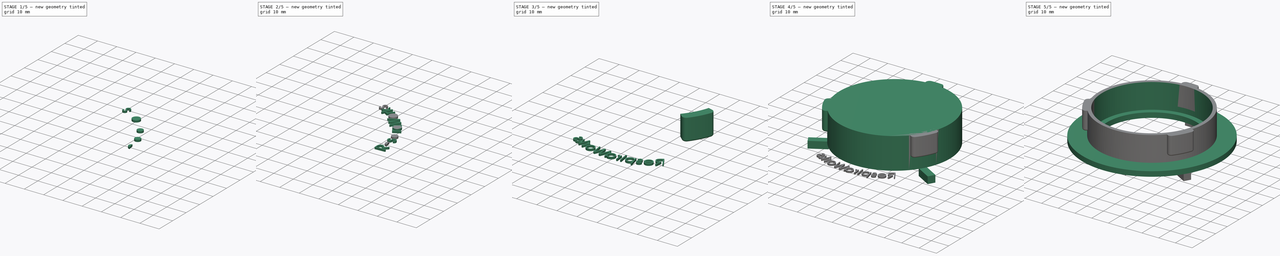
[diagram: build sequence overview — one tinted view per stage of 5, left to right]
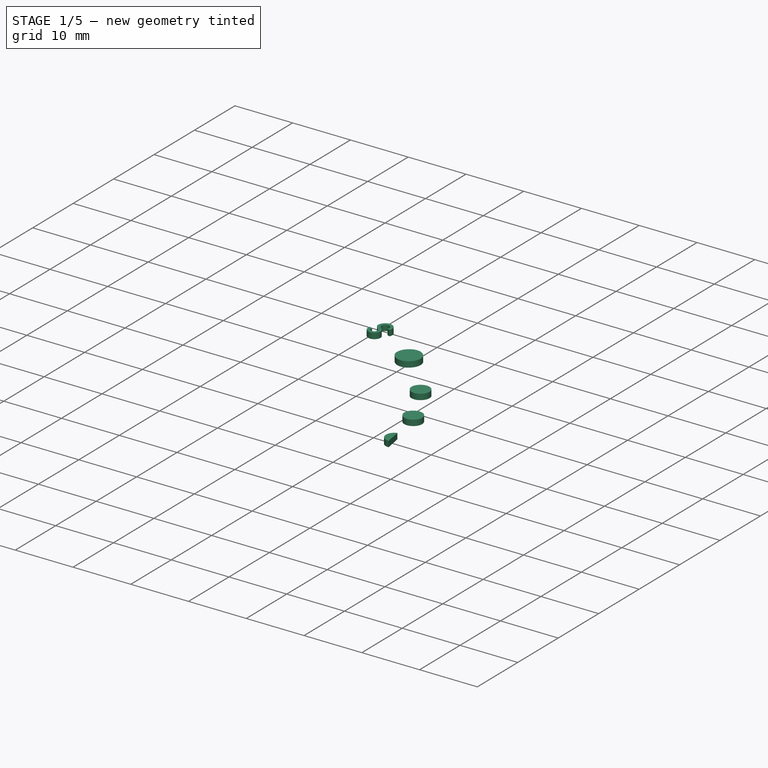
[diagram: stage 1 of 5 — iso view after this stage's code; geometry added in this stage tinted green]
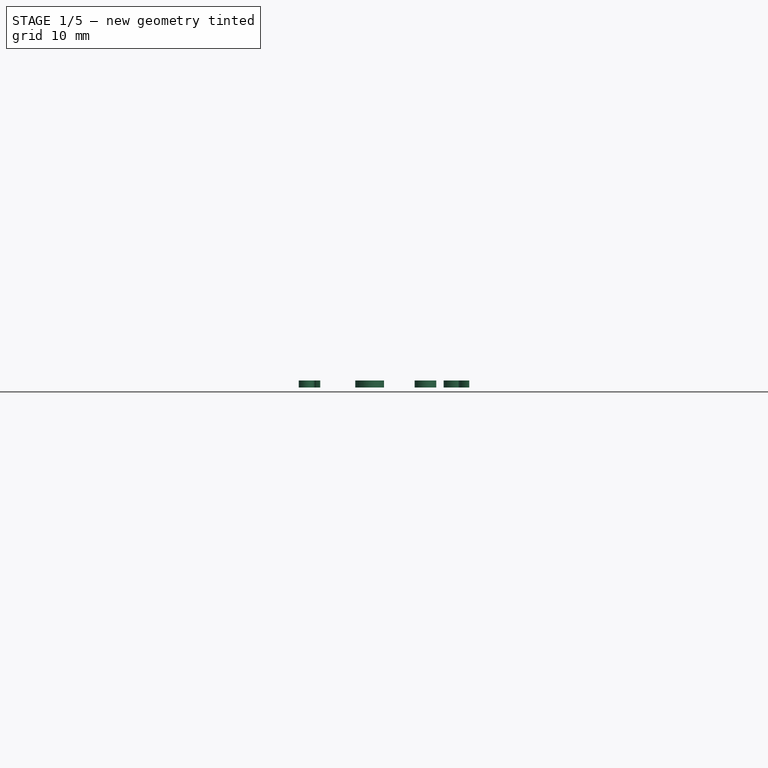
[diagram: stage 1 of 5 — front view after this stage's code; geometry added in this stage tinted green]
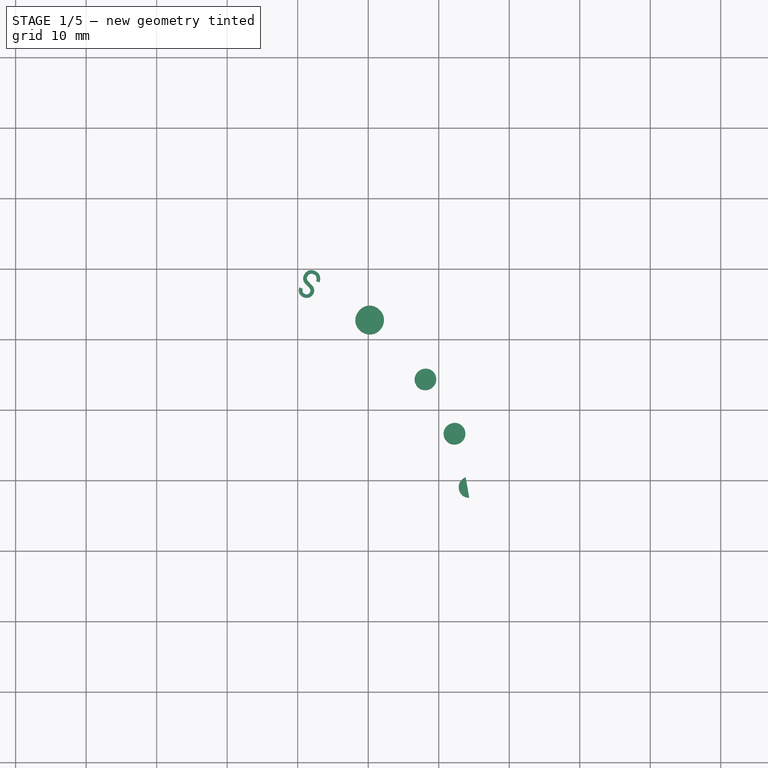
[diagram: stage 1 of 5 — top view after this stage's code; geometry added in this stage tinted green]
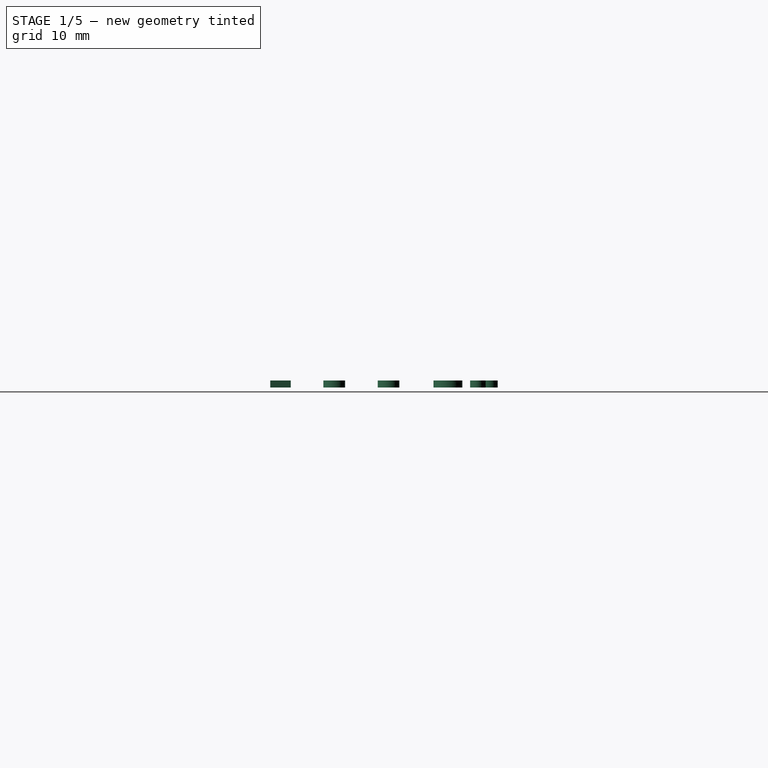
[diagram: stage 1 of 5 — right view after this stage's code; geometry added in this stage tinted green]
FCSTD DOCUMENT  (FreeCAD 0.18R4 (GitTag))
Label: PAPR-6700-FullFaceMaskPlate
License: All rights reserved
LicenseURL: http://en.wikipedia.org/wiki/All_rights_reserved
objects: Part::Feature×17, Part::Extrusion×17, Part::Cylinder×5, Part::MultiFuse×4, Sketcher::SketchObject×3, Part::Revolution×3, Part::Fillet×3, Part::Cut×2, Part::Box×1, Part::FeaturePython×1
note: 56 computed .brp shape members not serialized (recipe doc carries the construction recipe); baked Part::Feature solids carry a one-line shape summary decoded from their .brp

FEATURE [Part::Feature] path1074001
  shape: bbox 3.229 x 3.209 x 2e-07 mm, 0 faces, 0 solids (baked)
FEATURE [Part::Feature] path1082
  shape: bbox 4.44 x 6.043 x 2e-07 mm, 0 faces, 0 solids (baked)
FEATURE [Part::Extrusion] Extrude015
  Base = -> path1074001
  Dir = (0,0,-1)
  DirMode = 2
  FaceMakerClass = Part::FaceMakerBullseye
  LengthFwd = -1
  LengthRev = 0
  Solid = true
  Symmetric = false
FEATURE [Part::Extrusion] Extrude009
  Base = -> path1078
  Dir = (0,0,1)
  DirMode = 2
  FaceMakerClass = Part::FaceMakerBullseye
  LengthFwd = 1
  LengthRev = 0
  Solid = true
  Symmetric = false
FEATURE [Part::Extrusion] Extrude014
  Base = -> path1068001
  Dir = (0,0,-1)
  DirMode = 2
  FaceMakerClass = Part::FaceMakerBullseye
  LengthFwd = -1
  LengthRev = 0
  Solid = true
  Symmetric = false
FEATURE [Part::Extrusion] Extrude012
  Base = -> path1084
  Dir = (0,0,1)
  DirMode = 2
  FaceMakerClass = Part::FaceMakerBullseye
  LengthFwd = 1
  LengthRev = 0
  Solid = true
  Symmetric = false
FEATURE [Part::Extrusion] Extrude016
  Base = -> path1078001
  Dir = (0,0,-1)
  DirMode = 2
  FaceMakerClass = Part::FaceMakerBullseye
  LengthFwd = -1
  LengthRev = 0
  Solid = true
  Symmetric = false
FEATURE [Part::Feature] path1064001
  shape: bbox 1.557 x 2.913 x 2e-07 mm, 0 faces, 0 solids (baked)
FEATURE [Part::Extrusion] Extrude013
  Base = -> path1064001
  Dir = (0,0,-1)
  DirMode = 2
  FaceMakerClass = Part::FaceMakerBullseye
  LengthFwd = -1
  LengthRev = 0
  Solid = true
  Symmetric = false
FEATURE [Part::MultiFuse] Fusion003  label="nRespiraWorksCircularText"
  Shapes = -> [Extrude013,Extrude015,Extrude014,Extrude016]
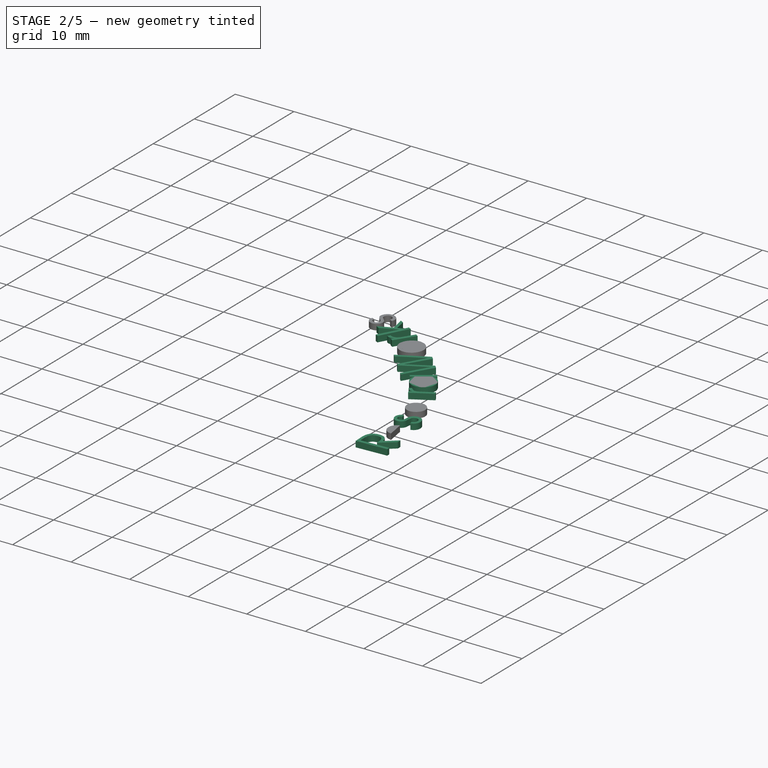
[diagram: stage 2 of 5 — iso view after this stage's code; geometry added in this stage tinted green]
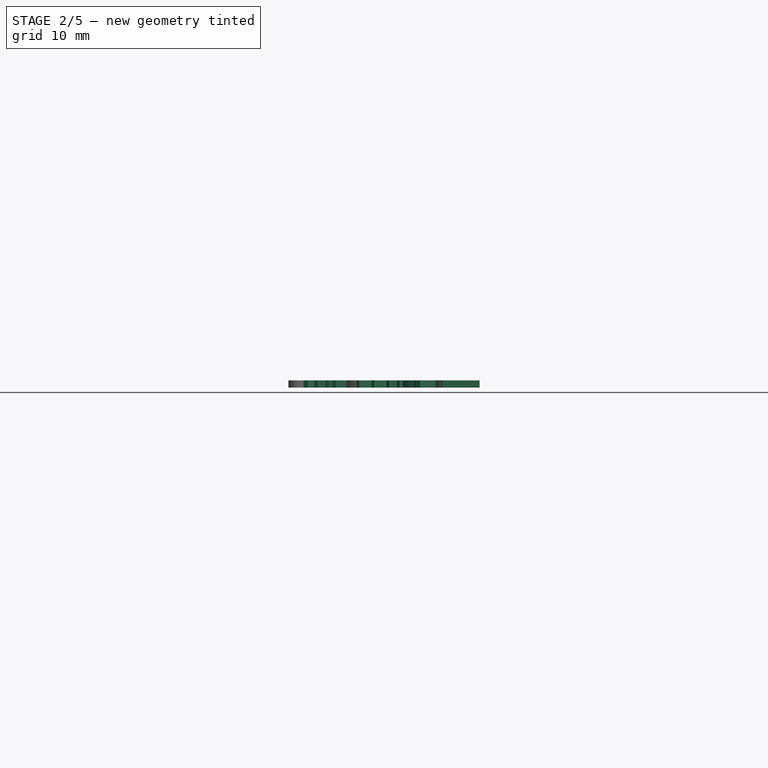
[diagram: stage 2 of 5 — front view after this stage's code; geometry added in this stage tinted green]
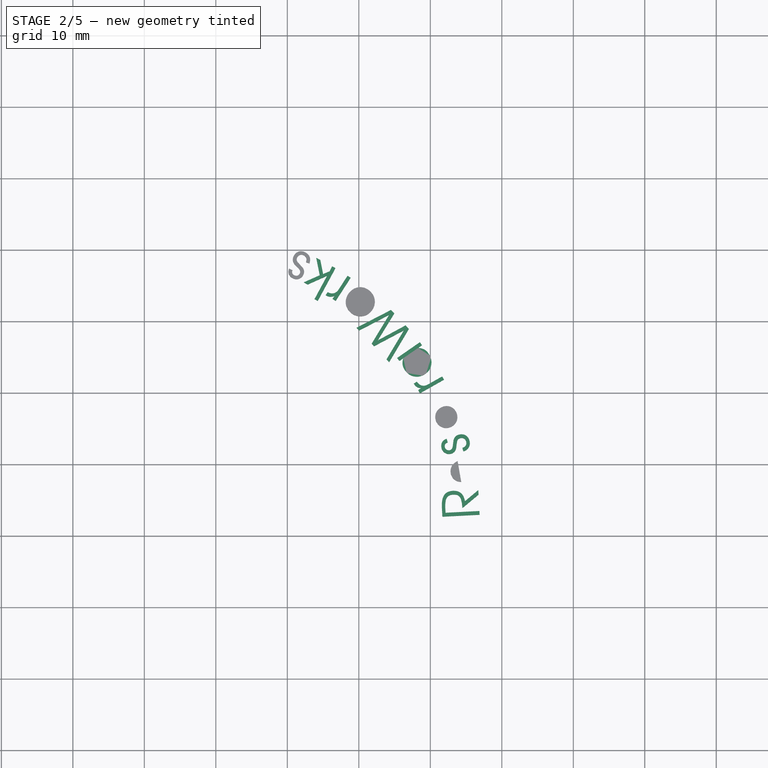
[diagram: stage 2 of 5 — top view after this stage's code; geometry added in this stage tinted green]
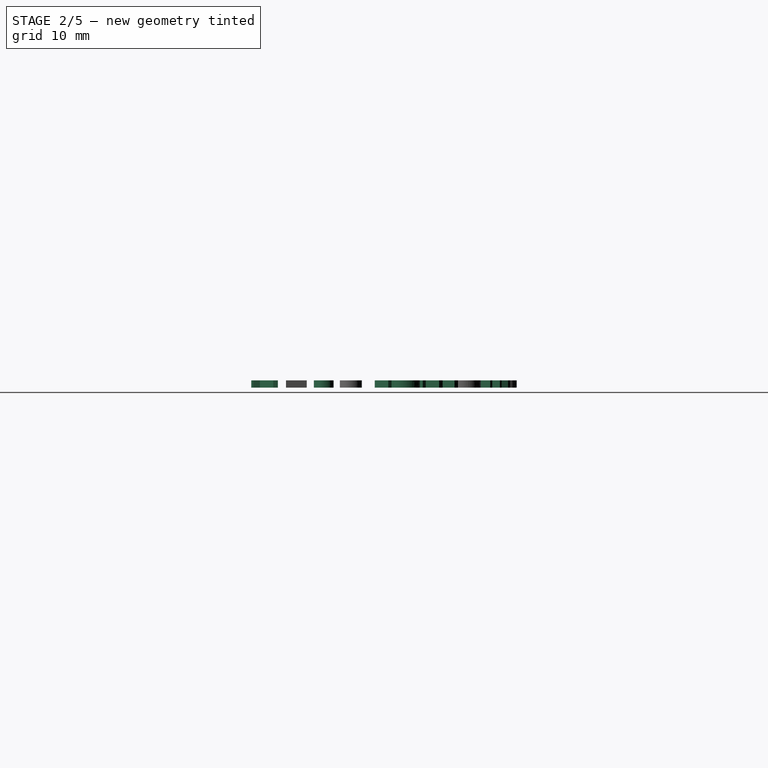
[diagram: stage 2 of 5 — right view after this stage's code; geometry added in this stage tinted green]
FEATURE [Part::Feature] path1066
  shape: bbox 4.123 x 2.886 x 2e-07 mm, 0 faces, 0 solids (baked)
FEATURE [Part::Extrusion] Extrude002
  Base = -> path1066
  Dir = (0,0,1)
  DirMode = 2
  FaceMakerClass = Part::FaceMakerBullseye
  LengthFwd = 1
  LengthRev = 0
  Solid = true
  Symmetric = false
FEATURE [Part::Feature] path1072
  shape: bbox 4.235 x 2.351 x 2e-07 mm, 0 faces, 0 solids (baked)
FEATURE [Part::Extrusion] Extrude006
  Base = -> path1072
  Dir = (0,0,1)
  DirMode = 2
  FaceMakerClass = Part::FaceMakerBullseye
  LengthFwd = 1
  LengthRev = 0
  Solid = true
  Symmetric = false
FEATURE [Part::Feature] path1074
  shape: bbox 4.889 x 4.925 x 2e-07 mm, 0 faces, 0 solids (baked)
FEATURE [Part::Extrusion] Extrude007
  Base = -> path1074
  Dir = (0,0,1)
  DirMode = 2
  FaceMakerClass = Part::FaceMakerBullseye
  LengthFwd = 1
  LengthRev = 0
  Solid = true
  Symmetric = false
FEATURE [Part::Feature] path1068001
  shape: bbox 3.237 x 3.218 x 2e-07 mm, 0 faces, 0 solids (baked)
FEATURE [Part::Feature] path1078001
  shape: bbox 3.195 x 3.225 x 2e-07 mm, 0 faces, 0 solids (baked)
FEATURE [Part::Feature] path1076
  shape: bbox 7.322 x 7.314 x 2e-07 mm, 0 faces, 0 solids (baked)
FEATURE [Part::Extrusion] Extrude008
  Base = -> path1076
  Dir = (0,0,1)
  DirMode = 2
  FaceMakerClass = Part::FaceMakerBullseye
  LengthFwd = 1
  LengthRev = 0
  Solid = true
  Symmetric = false
FEATURE [Part::Extrusion] Extrude011
  Base = -> path1082
  Dir = (0,0,1)
  DirMode = 2
  FaceMakerClass = Part::FaceMakerBullseye
  LengthFwd = 1
  LengthRev = 0
  Solid = true
  Symmetric = false
FEATURE [Part::Extrusion] Extrude010
  Base = -> path1080
  Dir = (0,0,1)
  DirMode = 2
  FaceMakerClass = Part::FaceMakerBullseye
  LengthFwd = 1
  LengthRev = 0
  Solid = true
  Symmetric = false
FEATURE [Part::Feature] path1062
  shape: bbox 5.36 x 3.724 x 2e-07 mm, 0 faces, 0 solids (baked)
FEATURE [Part::Extrusion] Extrude
  Base = -> path1062
  Dir = (0,0,1)
  DirMode = 2
  FaceMakerClass = Part::FaceMakerBullseye
  LengthFwd = 1
  LengthRev = 0
  Solid = true
  Symmetric = false
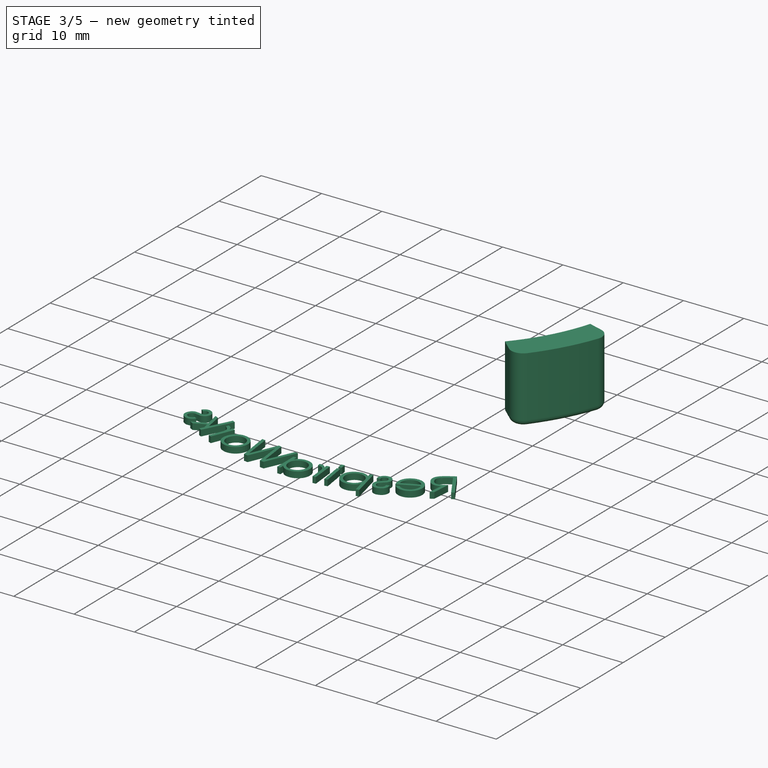
[diagram: stage 3 of 5 — iso view after this stage's code; geometry added in this stage tinted green]
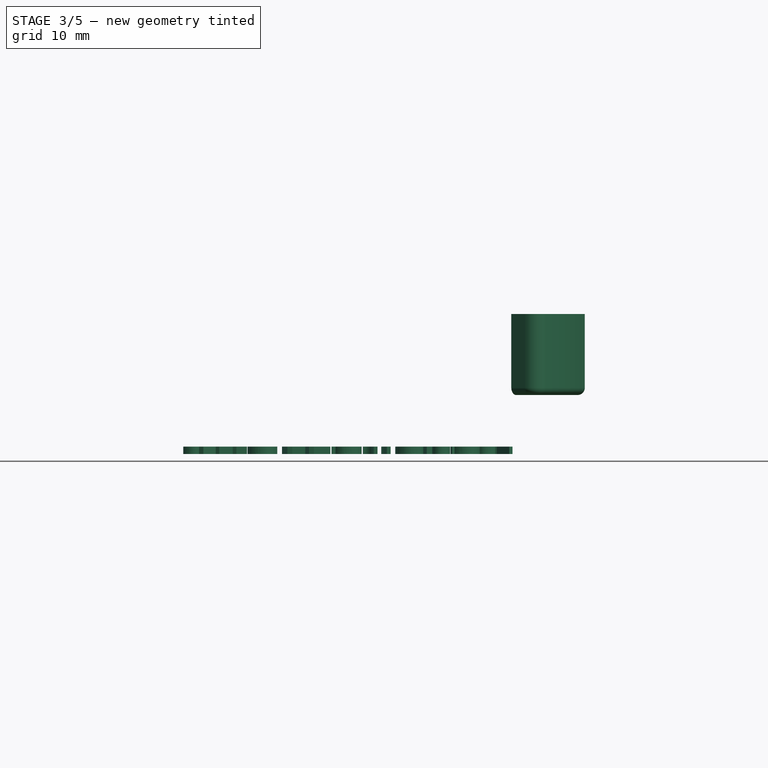
[diagram: stage 3 of 5 — front view after this stage's code; geometry added in this stage tinted green]
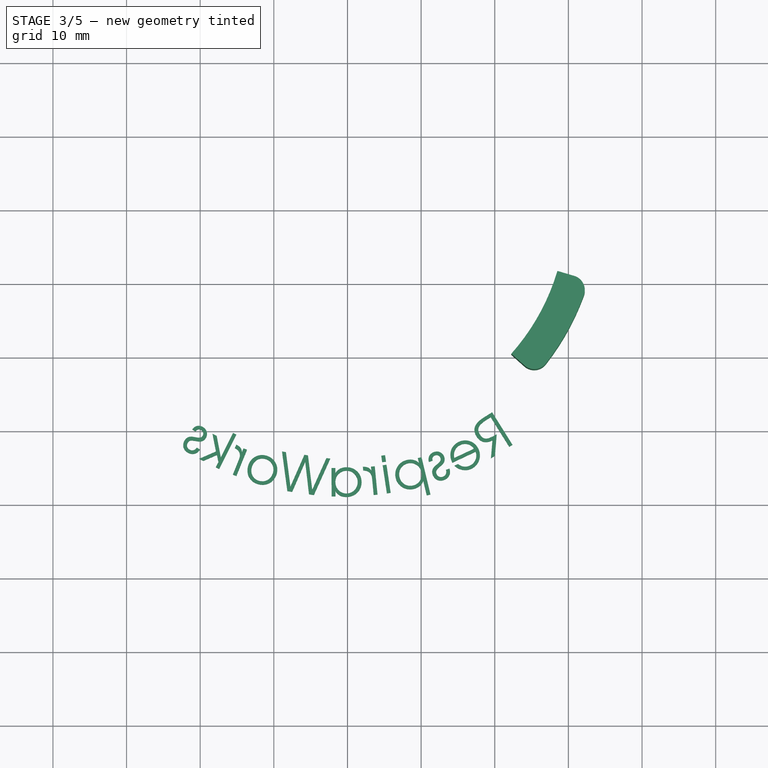
[diagram: stage 3 of 5 — top view after this stage's code; geometry added in this stage tinted green]
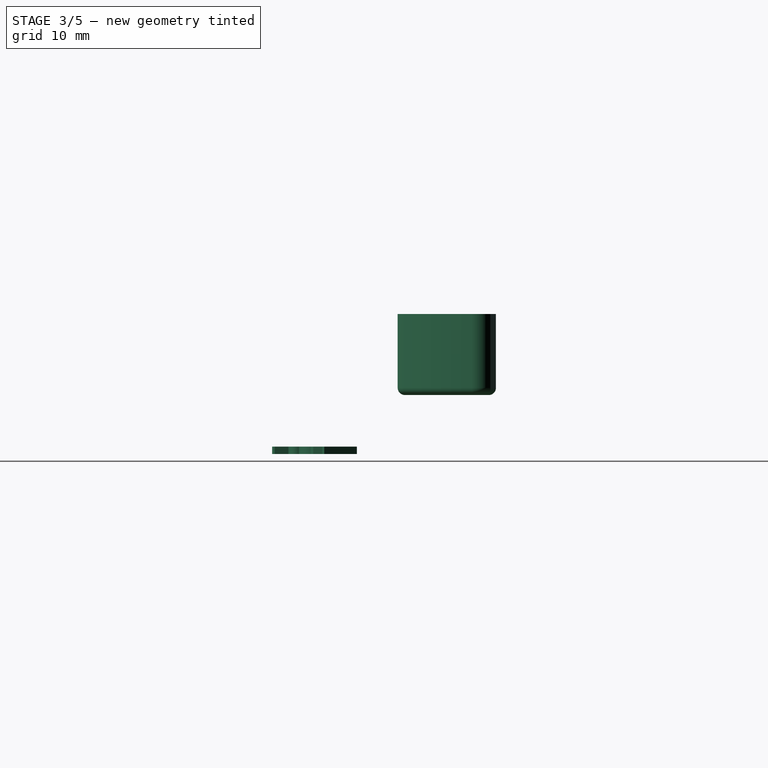
[diagram: stage 3 of 5 — right view after this stage's code; geometry added in this stage tinted green]
FEATURE [Part::Revolution] Revolve001  label="pFullFaceMaskPlate-LongTooth1"
  Angle = 25
  Axis = (0,0,1)
  Base = (0,0,0)
  FaceMakerClass = Part::FaceMakerBullseye
  Placement = pos=(0,0,0) rot=(0,0,1;3.98633rad)
  Solid = true
  Source = -> Sketch
  Symmetric = false
FEATURE [Part::Fillet] Fillet002  label="pFullFaceMaskPlate-LongToothSmooth1"
  Base = -> Revolve001
  Edges = 5 edges: [Edge5 r=1,Edge6 r=2,Edge7 r=2,Edge9 r=1,Edge10 r=1]
FEATURE [Part::Feature] path1080
  shape: bbox 3.503 x 3.524 x 2e-07 mm, 0 faces, 0 solids (baked)
FEATURE [Part::Feature] path1068
  shape: bbox 5.928 x 4.739 x 2e-07 mm, 0 faces, 0 solids (baked)
FEATURE [Part::Extrusion] Extrude003
  Base = -> path1068
  Dir = (0,0,1)
  DirMode = 2
  FaceMakerClass = Part::FaceMakerBullseye
  LengthFwd = 1
  LengthRev = 0
  Solid = true
  Symmetric = false
FEATURE [Part::Feature] path1084
  shape: bbox 3.158 x 4.031 x 2e-07 mm, 0 faces, 0 solids (baked)
FEATURE [Part::Feature] path1078
  shape: bbox 4.267 x 4.276 x 2e-07 mm, 0 faces, 0 solids (baked)
FEATURE [Part::Feature] path1070
  shape: bbox 3.686 x 2.19 x 2e-07 mm, 0 faces, 0 solids (baked)
FEATURE [Part::Extrusion] Extrude004
  Base = -> path1070
  Dir = (0,0,1)
  DirMode = 2
  FaceMakerClass = Part::FaceMakerBullseye
  LengthFwd = 1
  LengthRev = 0
  Solid = true
  Symmetric = false
FEATURE [Part::Feature] path1070001
  shape: bbox 1.029 x 0.8641 x 2e-07 mm, 0 faces, 0 solids (baked)
FEATURE [Part::Extrusion] Extrude005
  Base = -> path1070001
  Dir = (0,0,1)
  DirMode = 2
  FaceMakerClass = Part::FaceMakerBullseye
  LengthFwd = 1
  LengthRev = 0
  Solid = true
  Symmetric = false
FEATURE [Part::Feature] path1064
  shape: bbox 4.256 x 4.117 x 2e-07 mm, 0 faces, 0 solids (baked)
FEATURE [Part::Extrusion] Extrude001
  Base = -> path1064
  Dir = (0,0,1)
  DirMode = 2
  FaceMakerClass = Part::FaceMakerBullseye
  LengthFwd = 1
  LengthRev = 0
  Solid = true
  Symmetric = false
FEATURE [Part::MultiFuse] Fusion002  label="pRespiraWorksCircularText"
  Shapes = -> [Extrude012,Extrude001,Extrude003,Extrude004,Extrude005,Extrude006,Extrude007,Extrude002,Extrude,Extrude008,Extrude011,Extrude010,Extrude009]
FEATURE [Part::Cut] Cut001  label="RespiraWorksCircularText"
  Base = -> Fusion002
  Placement = pos=(-23.3438,-31.0119,-3e-15) rot=(0.887011,-0.461749,0;3.14159rad)
  Tool = -> Fusion003
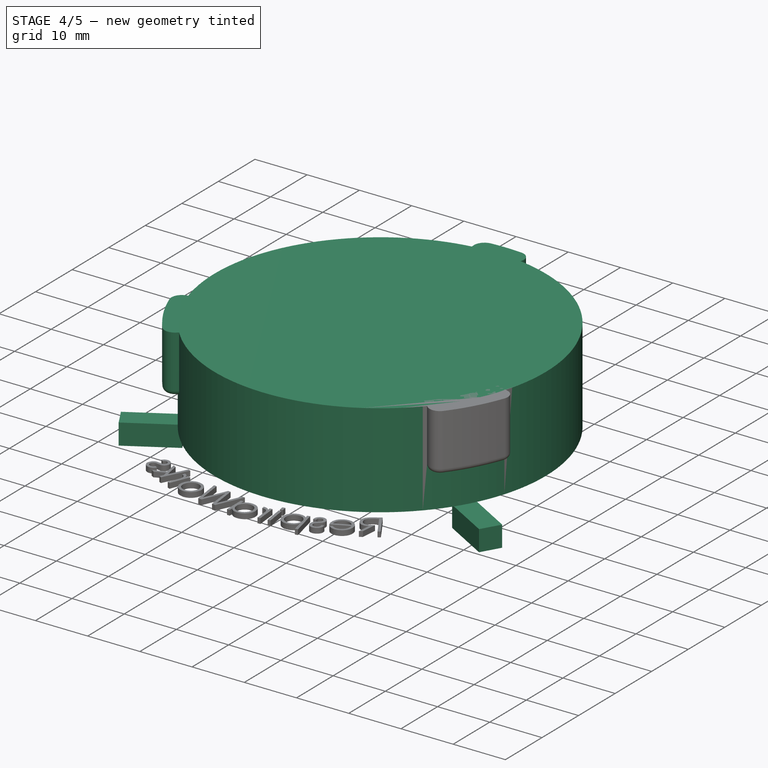
[diagram: stage 4 of 5 — iso view after this stage's code; geometry added in this stage tinted green]
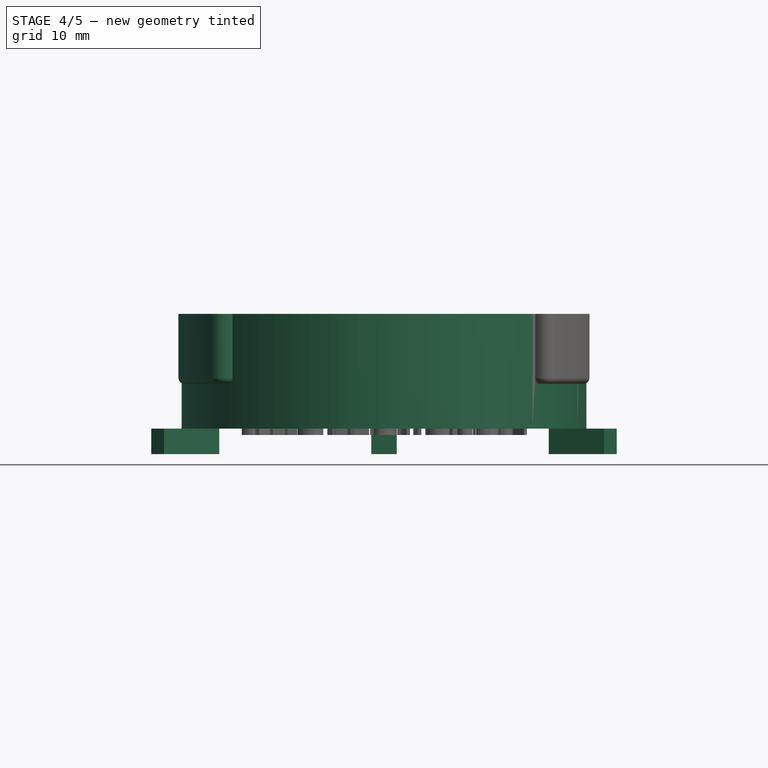
[diagram: stage 4 of 5 — front view after this stage's code; geometry added in this stage tinted green]
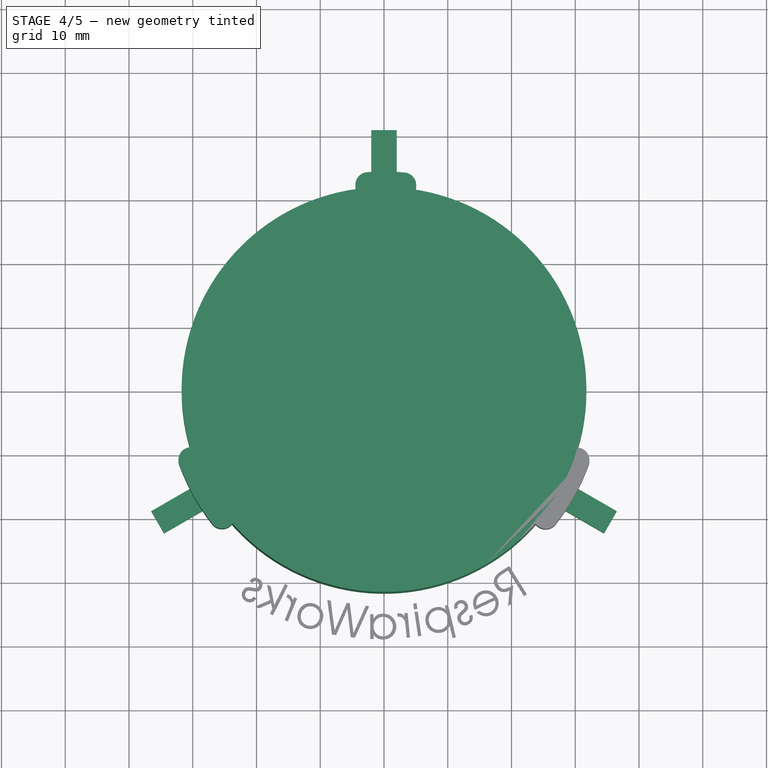
[diagram: stage 4 of 5 — top view after this stage's code; geometry added in this stage tinted green]
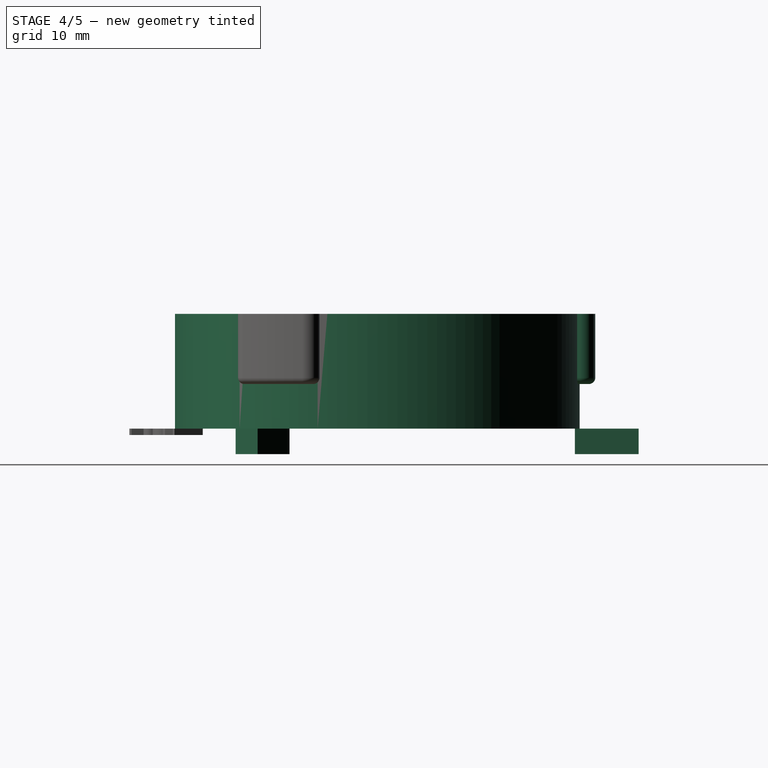
[diagram: stage 4 of 5 — right view after this stage's code; geometry added in this stage tinted green]
FEATURE [Part::Cylinder] Cylinder001  label="pFullFaceMaskPlate-Tube"
  Angle = 360
  AttacherType = Attacher::AttachEngine3D
  Height = 18
  Radius = 31.75
FEATURE [Sketcher::SketchObject] Sketch  label="ToothProfile"
  Placement = pos=(0,0,0) rot=(0.57735,0.57735,0.57735;2.0944rad)
  sketch-geometry (4):
    g0: LineSegment StartX=29.75 StartY=18 StartZ=0 EndX=34.2 EndY=18 EndZ=0
    g1: LineSegment StartX=34.2 StartY=18 StartZ=0 EndX=34.2 EndY=7 EndZ=0
    g2: LineSegment StartX=34.2 StartY=7 StartZ=0 EndX=29.75 EndY=7 EndZ=0
    g3: LineSegment StartX=29.75 StartY=7 StartZ=0 EndX=29.75 EndY=18 EndZ=0
  constraints (12):
    c: Coincident(g0,g1)
    c: Coincident(g1,g2)
    c: Coincident(g2,g3)
    c: Coincident(g3,g0)
    c: Horizontal(g0)
    c: Horizontal(g2)
    c: Vertical(g1)
    c: Vertical(g3)
    c: DistanceX(g0,g0) = 4.45
    c: DistanceY(g-1,g1) = 7
    c: DistanceX(g-1,g2) = 29.75
    c: DistanceY(g1,g0) = 11
FEATURE [Sketcher::SketchObject] Sketch001  label="ToothProfile001"
  Placement = pos=(0,0,0) rot=(0.57735,0.57735,0.57735;2.0944rad)
  sketch-geometry (4):
    g0: LineSegment StartX=29.75 StartY=18 StartZ=0 EndX=34.2 EndY=18 EndZ=0
    g1: LineSegment StartX=34.2 StartY=18 StartZ=0 EndX=34.2 EndY=7 EndZ=0
    g2: LineSegment StartX=34.2 StartY=7 StartZ=0 EndX=29.75 EndY=7 EndZ=0
    g3: LineSegment StartX=29.75 StartY=7 StartZ=0 EndX=29.75 EndY=18 EndZ=0
  constraints (12):
    c: Coincident(g0,g1)
    c: Coincident(g1,g2)
    c: Coincident(g2,g3)
    c: Coincident(g3,g0)
    c: Horizontal(g0)
    c: Horizontal(g2)
    c: Vertical(g1)
    c: Vertical(g3)
    c: DistanceX(g0,g0) = 4.45
    c: DistanceY(g-1,g1) = 7
    c: DistanceX(g-1,g2) = 29.75
    c: DistanceY(g1,g0) = 11
FEATURE [Sketcher::SketchObject] Sketch002  label="ToothProfile002"
  Placement = pos=(0,0,0) rot=(0.57735,0.57735,0.57735;2.0944rad)
  sketch-geometry (4):
    g0: LineSegment StartX=29.75 StartY=18 StartZ=0 EndX=34.2 EndY=18 EndZ=0
    g1: LineSegment StartX=34.2 StartY=18 StartZ=0 EndX=34.2 EndY=7 EndZ=0
    g2: LineSegment StartX=34.2 StartY=7 StartZ=0 EndX=29.75 EndY=7 EndZ=0
    g3: LineSegment StartX=29.75 StartY=7 StartZ=0 EndX=29.75 EndY=18 EndZ=0
  constraints (12):
    c: Coincident(g0,g1)
    c: Coincident(g1,g2)
    c: Coincident(g2,g3)
    c: Coincident(g3,g0)
    c: Horizontal(g0)
    c: Horizontal(g2)
    c: Vertical(g1)
    c: Vertical(g3)
    c: DistanceX(g0,g0) = 4.45
    c: DistanceY(g-1,g1) = 7
    c: DistanceX(g-1,g2) = 29.75
    c: DistanceY(g1,g0) = 11
FEATURE [Part::Revolution] Revolve  label="pFullFaceMaskPlate-SmallTooth"
  Angle = 17
  Axis = (0,0,1)
  Base = (0,0,0)
  FaceMakerClass = Part::FaceMakerBullseye
  Placement = pos=(0,0,0) rot=(0,0,-1;0.15708rad)
  Solid = true
  Source = -> Sketch002
  Symmetric = false
FEATURE [Part::Revolution] Revolve002  label="pFullFaceMaskPlate-LongTooth2"
  Angle = 25
  Axis = (0,0,1)
  Base = (0,0,0)
  FaceMakerClass = Part::FaceMakerBullseye
  Placement = pos=(0,0,0) rot=(0,0,1;1.85878rad)
  Solid = true
  Source = -> Sketch001
  Symmetric = false
FEATURE [Part::Box] Box  label="Cube"
  AttacherType = Attacher::AttachEngine3D
  Height = 4
  Length = 4
  Placement = pos=(-2,31,-4) rot=(0,0,1;0rad)
  Width = 10
FEATURE [Part::FeaturePython] Array001  label="pFullFaceMaskPlate-RotationGrips"  # Draft array (typed FeaturePython)
  Angle = 360
  ArrayType = 1
  Axis = (0,0,1)
  Base = -> Box
  Center = (0,0,0)
  Fuse = false
  IntervalAxis = (0,0,0)
  IntervalX = (1,0,0)
  IntervalY = (0,1,0)
  IntervalZ = (0,0,1)
  NumberPolar = 3
  NumberX = 1
  NumberY = 1
  NumberZ = 1
FEATURE [Part::Fillet] Fillet  label="pFullFaceMaskPlate-ShortToothSmooth"
  Base = -> Revolve
  Edges = 5 edges: [Edge5 r=1,Edge6 r=2,Edge7 r=2,Edge9 r=1,Edge10 r=1]
FEATURE [Part::Fillet] Fillet001  label="pFullFaceMaskPlate-LongToothSmooth2"
  Base = -> Revolve002
  Edges = 5 edges: [Edge5 r=1,Edge6 r=2,Edge7 r=2,Edge9 r=1,Edge10 r=1]
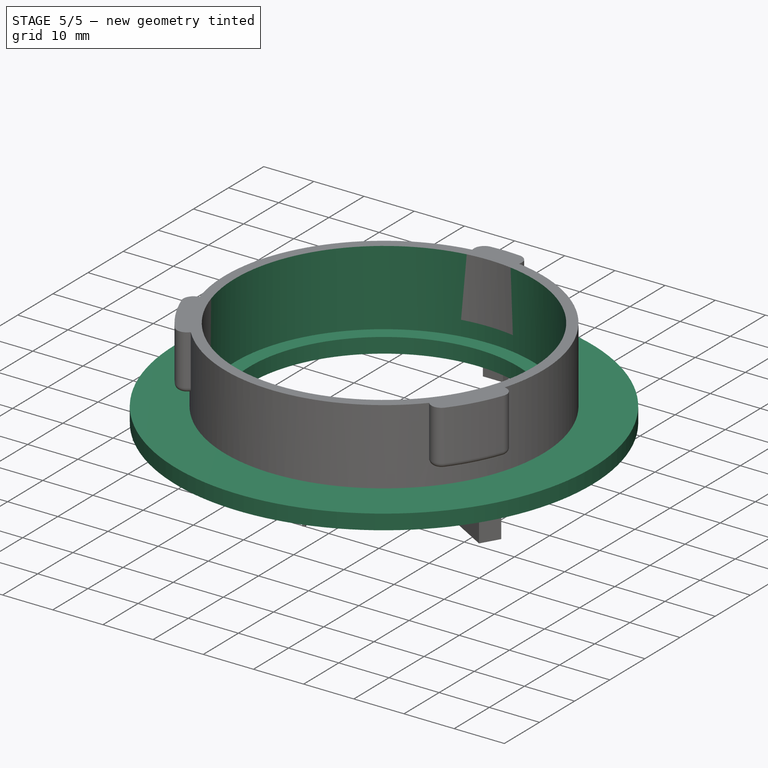
[diagram: stage 5 of 5 — iso view after this stage's code; geometry added in this stage tinted green]
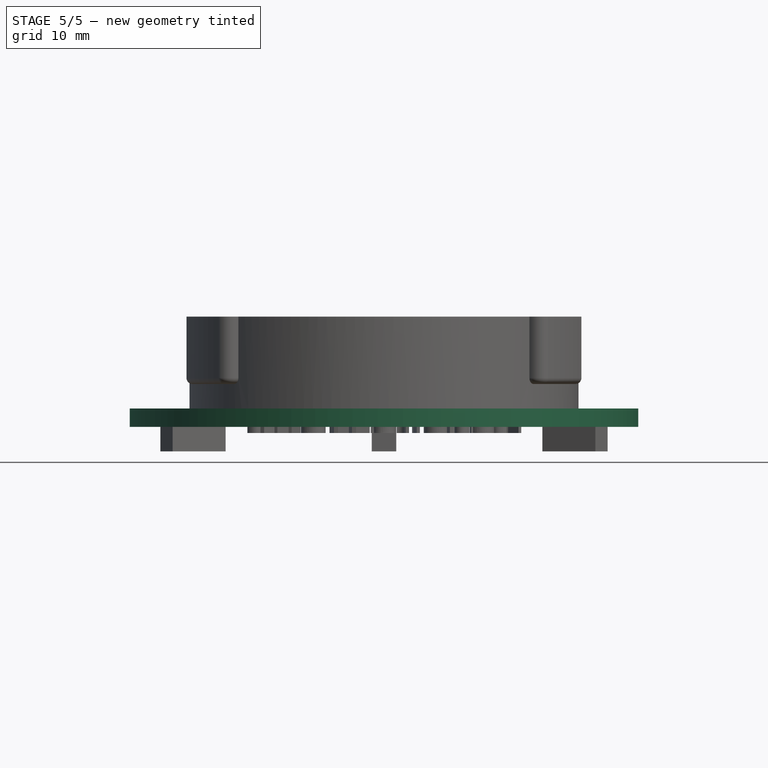
[diagram: stage 5 of 5 — front view after this stage's code; geometry added in this stage tinted green]
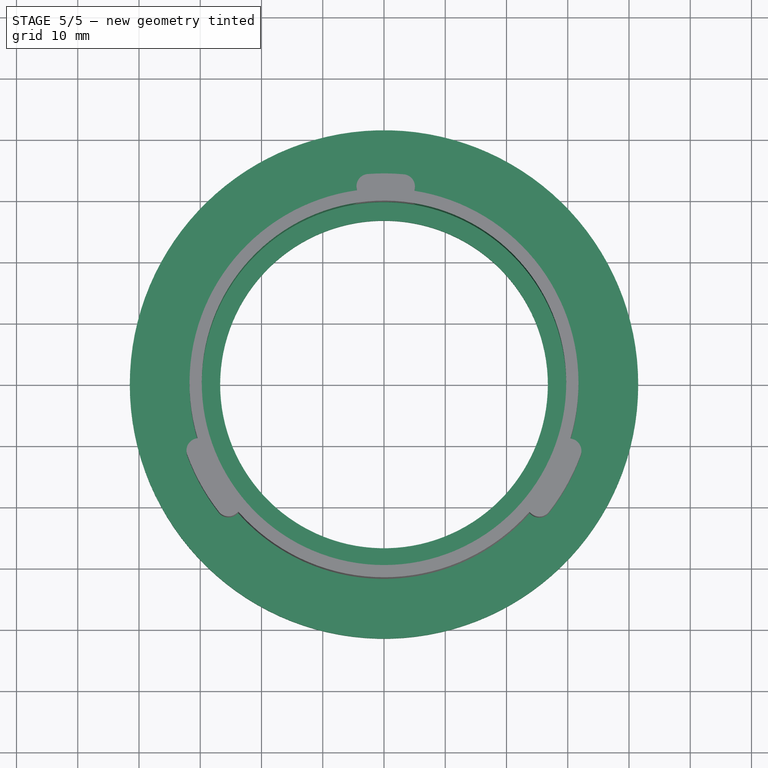
[diagram: stage 5 of 5 — top view after this stage's code; geometry added in this stage tinted green]
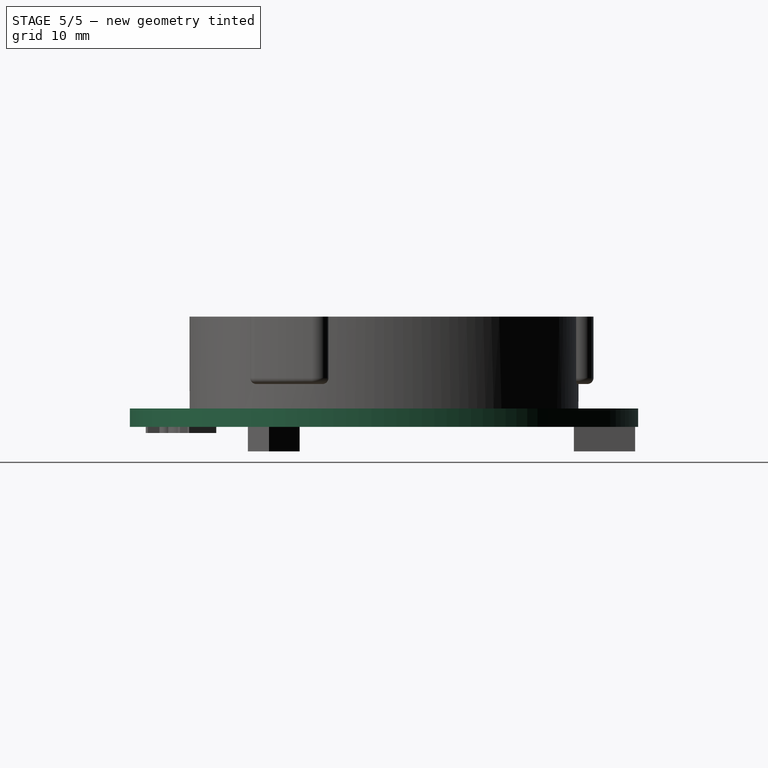
[diagram: stage 5 of 5 — right view after this stage's code; geometry added in this stage tinted green]
FEATURE [Part::Cylinder] Cylinder  label="pFullFaceMaskPlate-Base"
  Angle = 360
  AttacherType = Attacher::AttachEngine3D
  Height = 3
  Radius = 41.5
FEATURE [Part::Cylinder] Cylinder002  label="nFullFaceMaskPlate-Tube"
  Angle = 360
  AttacherType = Attacher::AttachEngine3D
  Height = 12
  Placement = pos=(0,0,6) rot=(0,0,1;0rad)
  Radius = 29.75
FEATURE [Part::Cylinder] Cylinder003  label="nFullFaceMaskPlate-OuterOpening"
  Angle = 360
  AttacherType = Attacher::AttachEngine3D
  Height = 18
  Radius = 26.75
FEATURE [Part::Cylinder] Cylinder004  label="nFullFaceMaskPlate-Disc"
  Angle = 360
  AttacherType = Attacher::AttachEngine3D
  Height = 15
  Placement = pos=(0,0,3) rot=(0,0,1;0rad)
  Radius = 29.75
FEATURE [Part::MultiFuse] Fusion  label="nFullFaceMaskPlate"
  Shapes = -> [Cylinder004,Cylinder003,Cylinder002]
FEATURE [Part::MultiFuse] Fusion004  label="pFullFaceMaskPlate"
  Shapes = -> [Cut001,Array001,Fillet002,Fillet001,Fillet,Cylinder001,Cylinder]
FEATURE [Part::Cut] Cut  label="TopLevelPart-FullFaceMaskPlate"
  Base = -> Fusion004
  Tool = -> Fusion
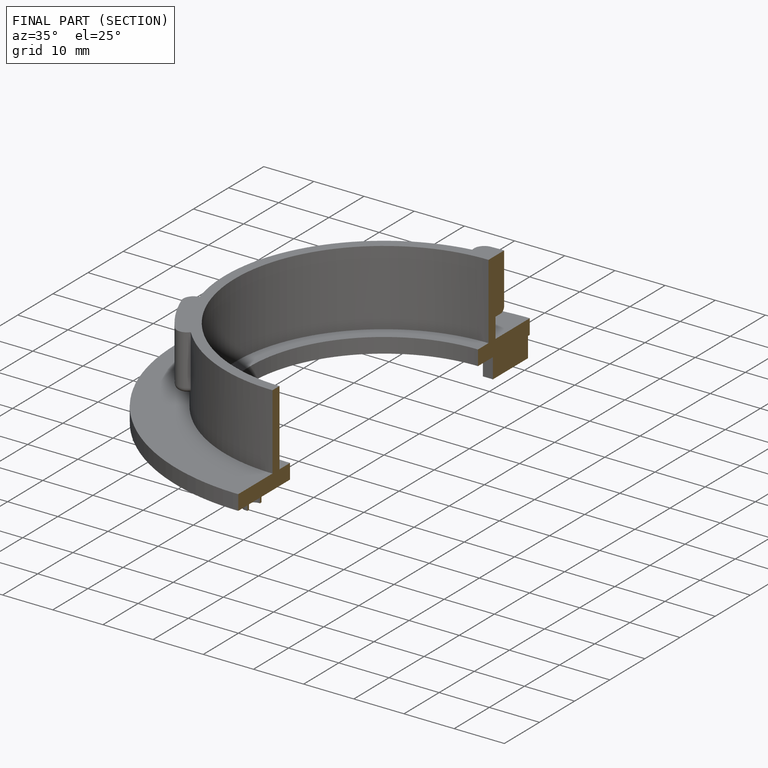
[diagram: finished part — half-section view (interior)]
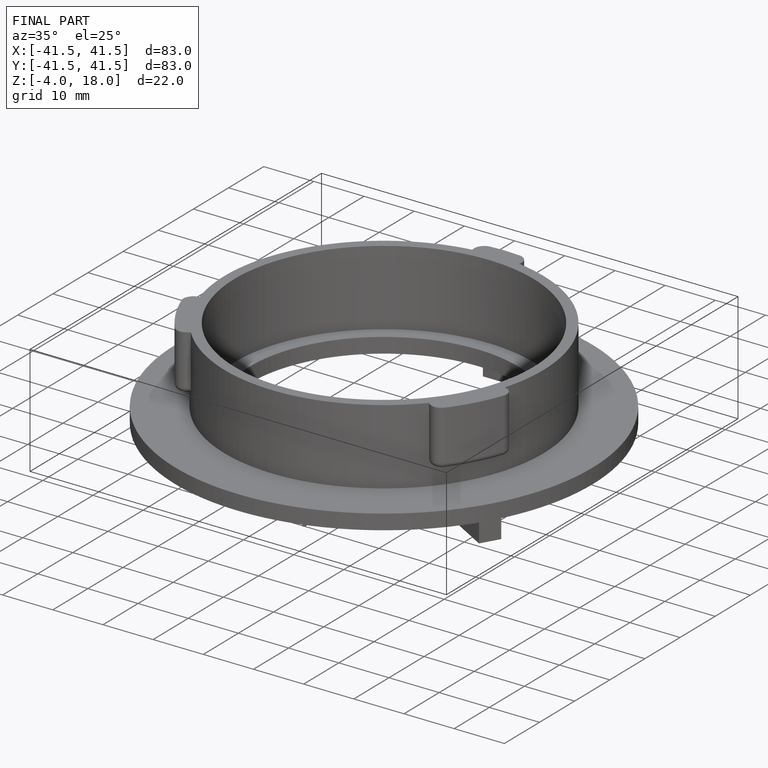
[diagram: finished part — iso view with bounding-box wireframe]
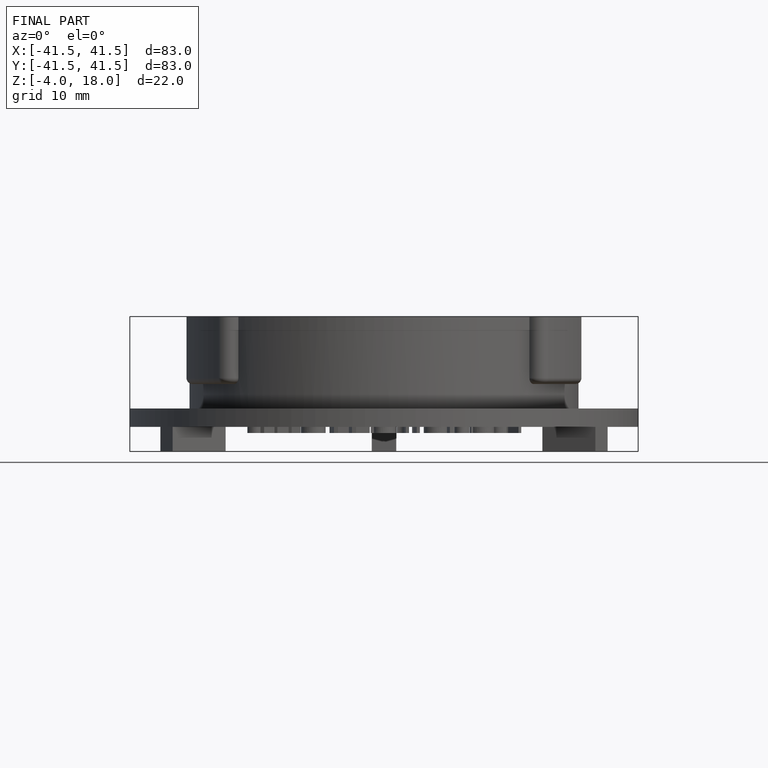
[diagram: finished part — front view with bounding-box wireframe]
